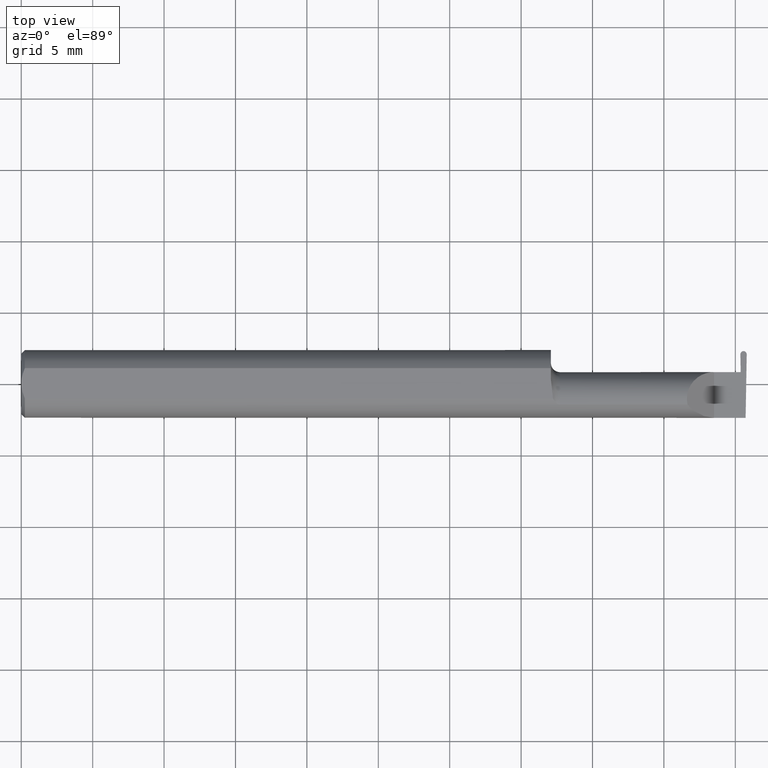
[diagram: clean part render]
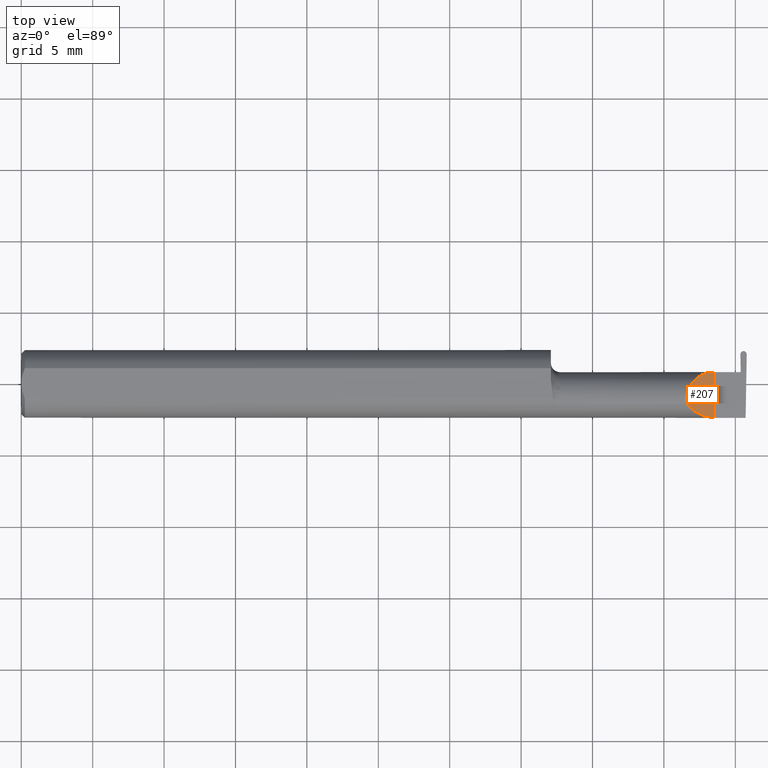
[diagram: same view with one face highlighted and labeled with its STEP entity id]
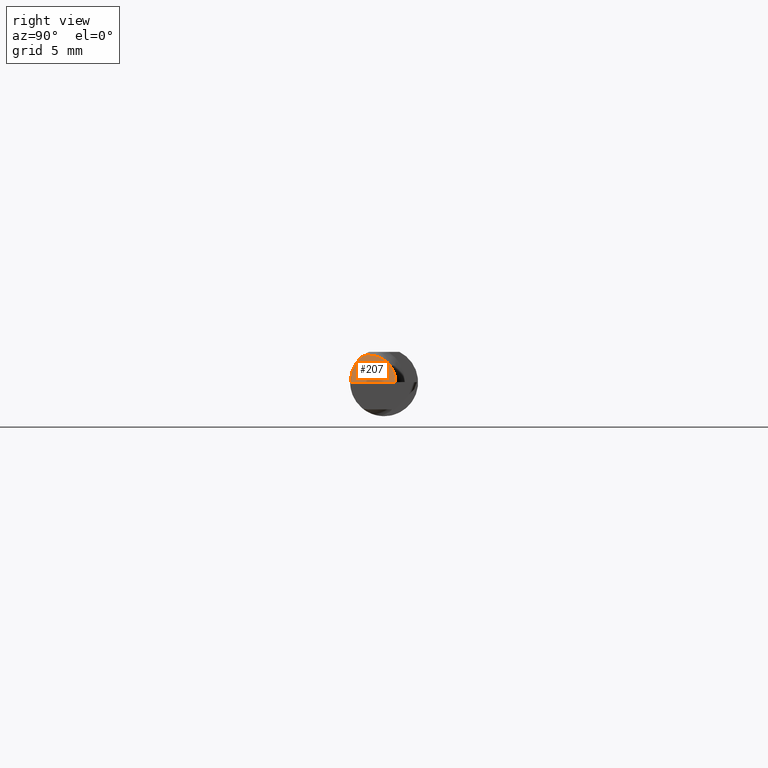
[diagram: same view with one face highlighted and labeled with its STEP entity id]
A machine part, top view. The second image highlights one B-rep face of the part: STEP entity #207.
A second angle (right view) of the same face is appended — the face is thin or edge-on in the first view.
In plain terms, the highlighted planar face has unit normal (-0.7071, 0, -0.7071).
Its self-contained STEP definition (entity closure, byte-faithful):
#38 = CARTESIAN_POINT ( 'NONE',  ( 1.836620632051321200, -0.05810704225352102820, 0.07337936794867834511 ) ) ;
#56 = CARTESIAN_POINT ( 'NONE',  ( 1.910000000000000142, 0.03239999999999998437, 6.613092715395735816E-17 ) ) ;
#82 = PLANE ( 'NONE',  #253 ) ;
#123 = VERTEX_POINT ( 'NONE', #459 ) ;
#141 = VECTOR ( 'NONE', #481, 39.37007874015748143 ) ;
#142 = CARTESIAN_POINT ( 'NONE',  ( 1.910000000000000142, -0.2500000000000000555, 1.102182119232621301E-17 ) ) ;
#151 = VERTEX_POINT ( 'NONE', #56 ) ;
#163 = ORIENTED_EDGE ( 'NONE', *, *, #419, .F. ) ;
#207 = ADVANCED_FACE ( 'NONE', ( #660 ), #82, .F. ) ;
#212 = CARTESIAN_POINT ( 'NONE',  ( 1.880893035518782730, -0.09359999999999997489, 0.02910696448121682239 ) ) ;
#242 =( BOUNDED_CURVE ( )  B_SPLINE_CURVE ( 3, ( #251, #244, #415, #245 ),
 .UNSPECIFIED., .F., .F. ) 
 B_SPLINE_CURVE_WITH_KNOTS ( ( 4, 4 ),
 ( 6.074922494366330916, 7.853981633974482790 ),
 .UNSPECIFIED. ) 
 CURVE ( )  GEOMETRIC_REPRESENTATION_ITEM ( )  RATIONAL_B_SPLINE_CURVE ( ( 1.000000000000000000, 0.7531850099525148057, 0.7531850099525148057, 1.000000000000000000 ) ) 
 REPRESENTATION_ITEM ( '' )  );
#244 = CARTESIAN_POINT ( 'NONE',  ( 1.825958805822864628, -0.007655250284932078528, 0.08404119417713461215 ) ) ;
#245 = CARTESIAN_POINT ( 'NONE',  ( 1.910000000000000142, 0.03239999999999998437, 6.613092715395735816E-17 ) ) ;
#251 = CARTESIAN_POINT ( 'NONE',  ( 1.836620632051321200, -0.05810704225352102820, 0.07337936794867834511 ) ) ;
#253 = AXIS2_PLACEMENT_3D ( 'NONE', #142, #626, #469 ) ;
#258 = LINE ( 'NONE', #529, #141 ) ;
#272 = CARTESIAN_POINT ( 'NONE',  ( 1.854690286057536941, -0.08092595952420821026, 0.05530971394246249340 ) ) ;
#306 = ORIENTED_EDGE ( 'NONE', *, *, #324, .F. ) ;
#324 = EDGE_CURVE ( 'NONE', #123, #151, #242, .T. ) ;
#415 = CARTESIAN_POINT ( 'NONE',  ( 1.858433946715231100, 0.03239999999999999131, 0.05156605328476845940 ) ) ;
#419 = EDGE_CURVE ( 'NONE', #671, #123, #479, .T. ) ;
#434 = EDGE_CURVE ( 'NONE', #671, #151, #258, .T. ) ;
#459 = CARTESIAN_POINT ( 'NONE',  ( 1.836620632051321200, -0.05810704225352102820, 0.07337936794867834511 ) ) ;
#469 = DIRECTION ( 'NONE',  ( -0.7071067811865507924, 0.000000000000000000, 0.7071067811865441310 ) ) ;
#479 =( BOUNDED_CURVE ( )  B_SPLINE_CURVE ( 3, ( #689, #212, #272, #38 ),
 .UNSPECIFIED., .F., .F. ) 
 B_SPLINE_CURVE_WITH_KNOTS ( ( 4, 4 ),
 ( 4.712388980384689674, 5.613420356061720184 ),
 .UNSPECIFIED. ) 
 CURVE ( )  GEOMETRIC_REPRESENTATION_ITEM ( )  RATIONAL_B_SPLINE_CURVE ( ( 1.000000000000000000, 0.9334817841311873199, 0.9334817841311873199, 1.000000000000000000 ) ) 
 REPRESENTATION_ITEM ( '' )  );
#480 = ORIENTED_EDGE ( 'NONE', *, *, #434, .T. ) ;
#481 = DIRECTION ( 'NONE',  ( -0.000000000000000000, 1.000000000000000000, -0.000000000000000000 ) ) ;
#529 = CARTESIAN_POINT ( 'NONE',  ( 1.910000000000000142, -0.2500000000000000555, 1.102182119232621301E-17 ) ) ;
#626 = DIRECTION ( 'NONE',  ( -0.7071067811865442421, 0.000000000000000000, -0.7071067811865509034 ) ) ;
#658 = EDGE_LOOP ( 'NONE', ( #306, #163, #480 ) ) ;
#660 = FACE_OUTER_BOUND ( 'NONE', #658, .T. ) ;
#667 = CARTESIAN_POINT ( 'NONE',  ( 1.910000000000000142, -0.09360000000000005815, 1.102182119232621301E-17 ) ) ;
#671 = VERTEX_POINT ( 'NONE', #667 ) ;
#689 = CARTESIAN_POINT ( 'NONE',  ( 1.910000000000000142, -0.09360000000000005815, 1.102182119232621301E-17 ) ) ;